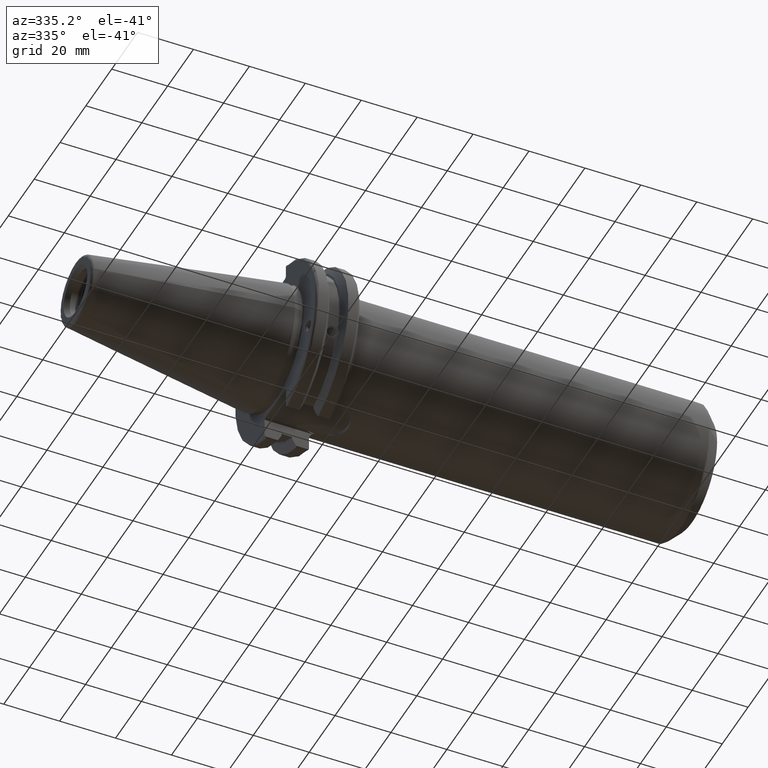
[diagram: clean part render]
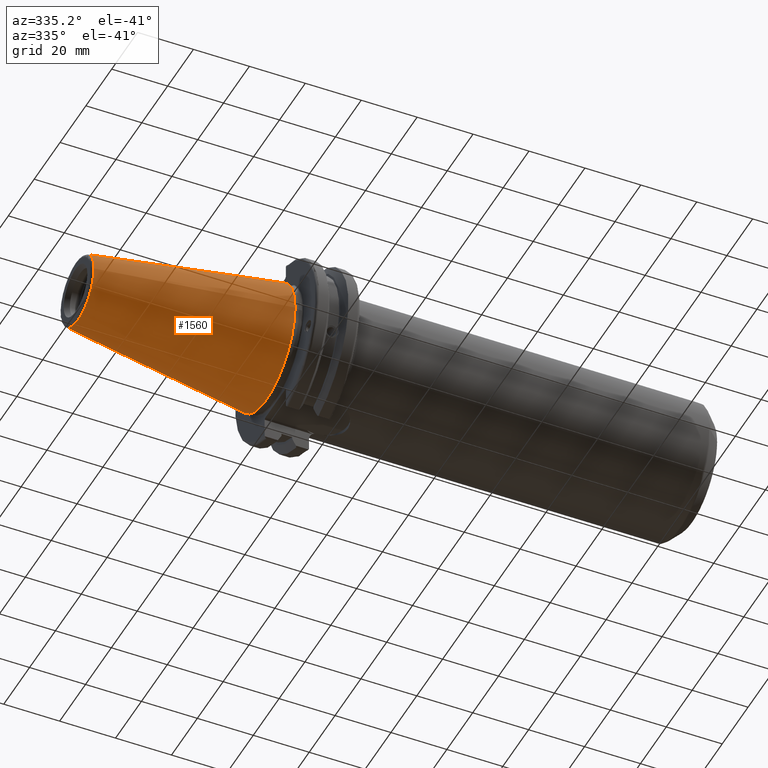
[diagram: same view with one face highlighted and labeled with its STEP entity id]
A machine part, auxiliary view. The second image highlights one B-rep face of the part: STEP entity #1560.
In plain terms, the highlighted conical surface has half-angle 8.297 deg.
Its self-contained STEP definition (entity closure, byte-faithful):
#97=CONICAL_SURFACE('',#1754,17.2484375,0.144812498238939);
#169=LINE('',#3042,#253);
#253=VECTOR('',#2153,17.2484375);
#412=FACE_OUTER_BOUND('',#512,.T.);
#512=EDGE_LOOP('',(#1360,#1361,#1362,#1363,#1364));
#601=CIRCLE('',#1748,12.3966635780937);
#602=CIRCLE('',#1749,12.3966635780937);
#606=CIRCLE('',#1755,22.225);
#761=VERTEX_POINT('',#3029);
#762=VERTEX_POINT('',#3030);
#765=VERTEX_POINT('',#3040);
#977=EDGE_CURVE('',#761,#762,#601,.T.);
#978=EDGE_CURVE('',#762,#761,#602,.T.);
#982=EDGE_CURVE('',#765,#765,#606,.T.);
#983=EDGE_CURVE('',#765,#762,#169,.T.);
#1360=ORIENTED_EDGE('',*,*,#982,.F.);
#1361=ORIENTED_EDGE('',*,*,#983,.T.);
#1362=ORIENTED_EDGE('',*,*,#977,.F.);
#1363=ORIENTED_EDGE('',*,*,#978,.F.);
#1364=ORIENTED_EDGE('',*,*,#983,.F.);
#1560=ADVANCED_FACE('',(#412),#97,.T.);
#1748=AXIS2_PLACEMENT_3D('',#3031,#2137,#2138);
#1749=AXIS2_PLACEMENT_3D('',#3032,#2139,#2140);
#1754=AXIS2_PLACEMENT_3D('',#3039,#2149,#2150);
#1755=AXIS2_PLACEMENT_3D('',#3041,#2151,#2152);
#2137=DIRECTION('center_axis',(-1.,0.,0.));
#2138=DIRECTION('ref_axis',(0.,-1.,3.06161699786838E-17));
#2139=DIRECTION('center_axis',(-1.,0.,0.));
#2140=DIRECTION('ref_axis',(0.,-1.,3.06161699786838E-17));
#2149=DIRECTION('center_axis',(1.,0.,0.));
#2150=DIRECTION('ref_axis',(0.,1.,0.));
#2151=DIRECTION('center_axis',(1.,0.,0.));
#2152=DIRECTION('ref_axis',(0.,0.,-1.));
#2153=DIRECTION('',(-0.989532981063282,0.144306893071729,1.76724974695192E-17));
#3029=CARTESIAN_POINT('',(-67.3943068930717,-1.5181534371019E-15,12.3966635780937));
#3030=CARTESIAN_POINT('',(-67.3943068930718,-12.3966635780937,-1.5181534371019E-15));
#3031=CARTESIAN_POINT('Origin',(-67.3943068930717,0.,-1.89769179637738E-15));
#3032=CARTESIAN_POINT('Origin',(-67.3943068930717,0.,-1.89769179637738E-15));
#3039=CARTESIAN_POINT('Origin',(-34.125,0.,0.));
#3040=CARTESIAN_POINT('',(0.,-22.225,-2.72177751110499E-15));
#3041=CARTESIAN_POINT('Origin',(0.,0.,0.));
#3042=CARTESIAN_POINT('',(-34.125,-17.2484375,-2.11232437746682E-15));